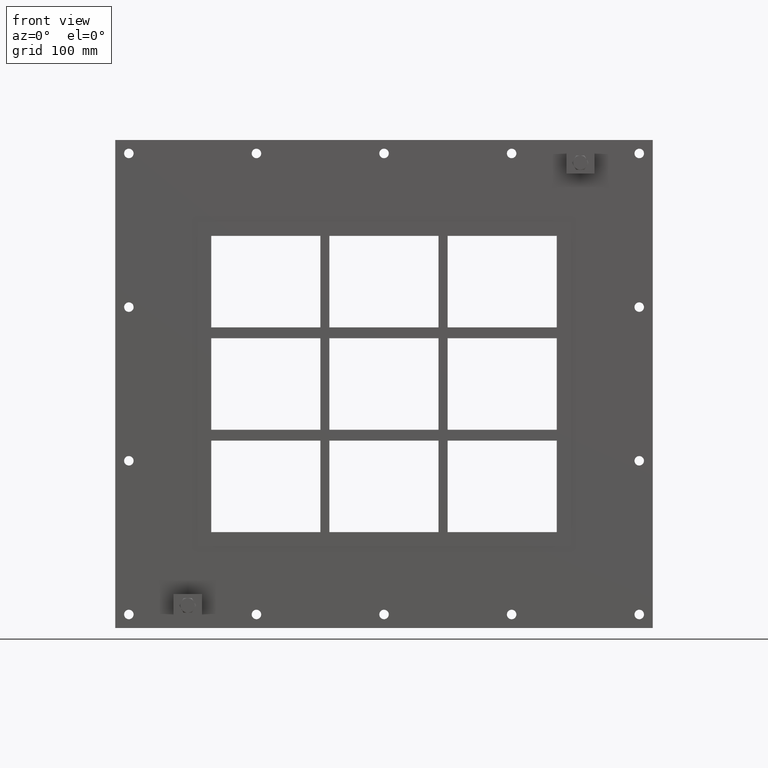
[diagram: clean part render]
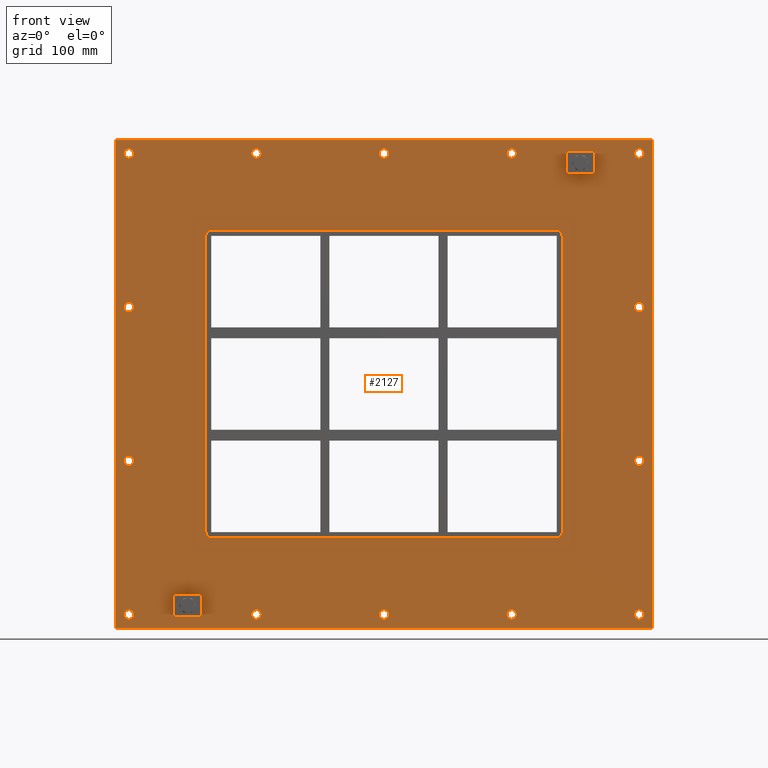
[diagram: same view with one face highlighted and labeled with its STEP entity id]
A machine part, front view. The second image highlights one B-rep face of the part: STEP entity #2127.
In plain terms, the highlighted planar face has unit normal (0, 1, 0).
Its self-contained STEP definition (entity closure, byte-faithful):
#84=CARTESIAN_POINT('',(-276.50000000000023,0.0,-254.49999999999994));
#85=VERTEX_POINT('',#84);
#86=CARTESIAN_POINT('',(-281.75000000000017,0.0,-254.49999999999994));
#87=DIRECTION('',(0.0,1.0,0.0));
#88=DIRECTION('',(1.0,0.0,0.0));
#89=AXIS2_PLACEMENT_3D('',#86,#87,#88);
#90=CIRCLE('',#89,5.25);
#91=EDGE_CURVE('',#85,#85,#90,.T.);
#112=CARTESIAN_POINT('',(287.09999999999985,0.0,-84.799999999999969));
#113=VERTEX_POINT('',#112);
#114=CARTESIAN_POINT('',(281.84999999999991,0.0,-84.799999999999969));
#115=DIRECTION('',(0.0,1.0,0.0));
#116=DIRECTION('',(1.0,0.0,0.0));
#117=AXIS2_PLACEMENT_3D('',#114,#115,#116);
#118=CIRCLE('',#117,5.25);
#119=EDGE_CURVE('',#113,#113,#118,.T.);
#140=CARTESIAN_POINT('',(-276.50000000000023,0.0,-84.799999999999969));
#141=VERTEX_POINT('',#140);
#142=CARTESIAN_POINT('',(-281.75000000000017,0.0,-84.799999999999969));
#143=DIRECTION('',(0.0,1.0,0.0));
#144=DIRECTION('',(1.0,0.0,0.0));
#145=AXIS2_PLACEMENT_3D('',#142,#143,#144);
#146=CIRCLE('',#145,5.25);
#147=EDGE_CURVE('',#141,#141,#146,.T.);
#168=CARTESIAN_POINT('',(287.09999999999985,0.0,84.90000000000002));
#169=VERTEX_POINT('',#168);
#170=CARTESIAN_POINT('',(281.84999999999991,0.0,84.90000000000002));
#171=DIRECTION('',(0.0,1.0,0.0));
#172=DIRECTION('',(1.0,0.0,0.0));
#173=AXIS2_PLACEMENT_3D('',#170,#171,#172);
#174=CIRCLE('',#173,5.25);
#175=EDGE_CURVE('',#169,#169,#174,.T.);
#196=CARTESIAN_POINT('',(-276.50000000000023,0.0,84.90000000000002));
#197=VERTEX_POINT('',#196);
#198=CARTESIAN_POINT('',(-281.75000000000017,0.0,84.90000000000002));
#199=DIRECTION('',(0.0,1.0,0.0));
#200=DIRECTION('',(1.0,0.0,0.0));
#201=AXIS2_PLACEMENT_3D('',#198,#199,#200);
#202=CIRCLE('',#201,5.25);
#203=EDGE_CURVE('',#197,#197,#202,.T.);
#224=CARTESIAN_POINT('',(-135.60000000000014,0.0,254.60000000000002));
#225=VERTEX_POINT('',#224);
#226=CARTESIAN_POINT('',(-140.85000000000014,0.0,254.60000000000002));
#227=DIRECTION('',(0.0,1.0,0.0));
#228=DIRECTION('',(1.0,0.0,0.0));
#229=AXIS2_PLACEMENT_3D('',#226,#227,#228);
#230=CIRCLE('',#229,5.25);
#231=EDGE_CURVE('',#225,#225,#230,.T.);
#252=CARTESIAN_POINT('',(-135.60000000000014,0.0,-254.49999999999994));
#253=VERTEX_POINT('',#252);
#254=CARTESIAN_POINT('',(-140.85000000000014,0.0,-254.49999999999994));
#255=DIRECTION('',(0.0,1.0,0.0));
#256=DIRECTION('',(1.0,0.0,0.0));
#257=AXIS2_PLACEMENT_3D('',#254,#255,#256);
#258=CIRCLE('',#257,5.25);
#259=EDGE_CURVE('',#253,#253,#258,.T.);
#280=CARTESIAN_POINT('',(5.299999999999834,0.0,254.60000000000002));
#281=VERTEX_POINT('',#280);
#282=CARTESIAN_POINT('',(0.049999999999848,0.0,254.60000000000002));
#283=DIRECTION('',(0.0,1.0,0.0));
#284=DIRECTION('',(1.0,0.0,0.0));
#285=AXIS2_PLACEMENT_3D('',#282,#283,#284);
#286=CIRCLE('',#285,5.25);
#287=EDGE_CURVE('',#281,#281,#286,.T.);
#308=CARTESIAN_POINT('',(5.299999999999834,0.0,-254.49999999999994));
#309=VERTEX_POINT('',#308);
#310=CARTESIAN_POINT('',(0.049999999999848,0.0,-254.49999999999994));
#311=DIRECTION('',(0.0,1.0,0.0));
#312=DIRECTION('',(1.0,0.0,0.0));
#313=AXIS2_PLACEMENT_3D('',#310,#311,#312);
#314=CIRCLE('',#313,5.25);
#315=EDGE_CURVE('',#309,#309,#314,.T.);
#336=CARTESIAN_POINT('',(146.19999999999985,0.0,254.60000000000002));
#337=VERTEX_POINT('',#336);
#338=CARTESIAN_POINT('',(140.94999999999987,0.0,254.60000000000002));
#339=DIRECTION('',(0.0,1.0,0.0));
#340=DIRECTION('',(1.0,0.0,0.0));
#341=AXIS2_PLACEMENT_3D('',#338,#339,#340);
#342=CIRCLE('',#341,5.25);
#343=EDGE_CURVE('',#337,#337,#342,.T.);
#364=CARTESIAN_POINT('',(146.19999999999985,0.0,-254.49999999999994));
#365=VERTEX_POINT('',#364);
#366=CARTESIAN_POINT('',(140.94999999999987,0.0,-254.49999999999994));
#367=DIRECTION('',(0.0,1.0,0.0));
#368=DIRECTION('',(1.0,0.0,0.0));
#369=AXIS2_PLACEMENT_3D('',#366,#367,#368);
#370=CIRCLE('',#369,5.25);
#371=EDGE_CURVE('',#365,#365,#370,.T.);
#392=CARTESIAN_POINT('',(287.09999999999985,0.0,-254.49999999999994));
#393=VERTEX_POINT('',#392);
#394=CARTESIAN_POINT('',(281.84999999999991,0.0,-254.49999999999994));
#395=DIRECTION('',(0.0,1.0,0.0));
#396=DIRECTION('',(1.0,0.0,0.0));
#397=AXIS2_PLACEMENT_3D('',#394,#395,#396);
#398=CIRCLE('',#397,5.25);
#399=EDGE_CURVE('',#393,#393,#398,.T.);
#420=CARTESIAN_POINT('',(-276.50000000000023,0.0,254.60000000000002));
#421=VERTEX_POINT('',#420);
#422=CARTESIAN_POINT('',(-281.75000000000017,0.0,254.60000000000002));
#423=DIRECTION('',(0.0,1.0,0.0));
#424=DIRECTION('',(1.0,0.0,0.0));
#425=AXIS2_PLACEMENT_3D('',#422,#423,#424);
#426=CIRCLE('',#425,5.25);
#427=EDGE_CURVE('',#421,#421,#426,.T.);
#448=CARTESIAN_POINT('',(287.09999999999985,0.0,254.60000000000002));
#449=VERTEX_POINT('',#448);
#450=CARTESIAN_POINT('',(281.84999999999991,0.0,254.60000000000002));
#451=DIRECTION('',(0.0,1.0,0.0));
#452=DIRECTION('',(1.0,0.0,0.0));
#453=AXIS2_PLACEMENT_3D('',#450,#451,#452);
#454=CIRCLE('',#453,5.25);
#455=EDGE_CURVE('',#449,#449,#454,.T.);
#1976=CARTESIAN_POINT('',(-1.505786E-014,0.0,0.0));
#1977=DIRECTION('',(0.0,1.0,0.0));
#1978=DIRECTION('',(0.0,0.0,1.0));
#1979=AXIS2_PLACEMENT_3D('',#1976,#1977,#1978);
#1980=PLANE('',#1979);
#1981=CARTESIAN_POINT('',(-296.75000000000006,0.0,269.49999999999994));
#1982=VERTEX_POINT('',#1981);
#1983=CARTESIAN_POINT('',(296.75000000000006,0.0,269.49999999999994));
#1984=VERTEX_POINT('',#1983);
#1985=CARTESIAN_POINT('',(-296.75000000000006,0.0,269.49999999999994));
#1986=DIRECTION('',(1.0,0.0,0.0));
#1987=VECTOR('',#1986,593.50000000000011);
#1988=LINE('',#1985,#1987);
#1989=EDGE_CURVE('',#1982,#1984,#1988,.T.);
#1990=ORIENTED_EDGE('',*,*,#1989,.F.);
#1991=CARTESIAN_POINT('',(-296.75000000000006,0.0,-269.49999999999994));
#1992=VERTEX_POINT('',#1991);
#1993=CARTESIAN_POINT('',(-296.75000000000006,0.0,-269.49999999999994));
#1994=DIRECTION('',(0.0,0.0,1.0));
#1995=VECTOR('',#1994,538.99999999999989);
#1996=LINE('',#1993,#1995);
#1997=EDGE_CURVE('',#1992,#1982,#1996,.T.);
#1998=ORIENTED_EDGE('',*,*,#1997,.F.);
#1999=CARTESIAN_POINT('',(296.75000000000006,0.0,-269.49999999999994));
#2000=VERTEX_POINT('',#1999);
#2001=CARTESIAN_POINT('',(296.75000000000006,0.0,-269.49999999999994));
#2002=DIRECTION('',(-1.0,0.0,0.0));
#2003=VECTOR('',#2002,593.50000000000011);
#2004=LINE('',#2001,#2003);
#2005=EDGE_CURVE('',#2000,#1992,#2004,.T.);
#2006=ORIENTED_EDGE('',*,*,#2005,.F.);
#2007=CARTESIAN_POINT('',(296.75000000000006,0.0,269.49999999999994));
#2008=DIRECTION('',(0.0,0.0,-1.0));
#2009=VECTOR('',#2008,538.99999999999989);
#2010=LINE('',#2007,#2009);
#2011=EDGE_CURVE('',#1984,#2000,#2010,.T.);
#2012=ORIENTED_EDGE('',*,*,#2011,.F.);
#2013=EDGE_LOOP('',(#1990,#1998,#2006,#2012));
#2014=FACE_OUTER_BOUND('',#2013,.T.);
#2015=ORIENTED_EDGE('',*,*,#91,.T.);
#2016=EDGE_LOOP('',(#2015));
#2017=FACE_BOUND('',#2016,.T.);
#2018=ORIENTED_EDGE('',*,*,#119,.T.);
#2019=EDGE_LOOP('',(#2018));
#2020=FACE_BOUND('',#2019,.T.);
#2021=ORIENTED_EDGE('',*,*,#147,.T.);
#2022=EDGE_LOOP('',(#2021));
#2023=FACE_BOUND('',#2022,.T.);
#2024=ORIENTED_EDGE('',*,*,#175,.T.);
#2025=EDGE_LOOP('',(#2024));
#2026=FACE_BOUND('',#2025,.T.);
#2027=ORIENTED_EDGE('',*,*,#203,.T.);
#2028=EDGE_LOOP('',(#2027));
#2029=FACE_BOUND('',#2028,.T.);
#2030=ORIENTED_EDGE('',*,*,#231,.T.);
#2031=EDGE_LOOP('',(#2030));
#2032=FACE_BOUND('',#2031,.T.);
#2033=ORIENTED_EDGE('',*,*,#259,.T.);
#2034=EDGE_LOOP('',(#2033));
#2035=FACE_BOUND('',#2034,.T.);
#2036=ORIENTED_EDGE('',*,*,#287,.T.);
#2037=EDGE_LOOP('',(#2036));
#2038=FACE_BOUND('',#2037,.T.);
#2039=ORIENTED_EDGE('',*,*,#315,.T.);
#2040=EDGE_LOOP('',(#2039));
#2041=FACE_BOUND('',#2040,.T.);
#2042=ORIENTED_EDGE('',*,*,#343,.T.);
#2043=EDGE_LOOP('',(#2042));
#2044=FACE_BOUND('',#2043,.T.);
#2045=ORIENTED_EDGE('',*,*,#371,.T.);
#2046=EDGE_LOOP('',(#2045));
#2047=FACE_BOUND('',#2046,.T.);
#2048=ORIENTED_EDGE('',*,*,#399,.T.);
#2049=EDGE_LOOP('',(#2048));
#2050=FACE_BOUND('',#2049,.T.);
#2051=ORIENTED_EDGE('',*,*,#427,.T.);
#2052=EDGE_LOOP('',(#2051));
#2053=FACE_BOUND('',#2052,.T.);
#2054=ORIENTED_EDGE('',*,*,#455,.T.);
#2055=EDGE_LOOP('',(#2054));
#2056=FACE_BOUND('',#2055,.T.);
#2057=CARTESIAN_POINT('',(-190.75000000000003,0.0,169.50000000000003));
#2058=VERTEX_POINT('',#2057);
#2059=CARTESIAN_POINT('',(-196.75000000000006,0.0,163.5));
#2060=VERTEX_POINT('',#2059);
#2061=CARTESIAN_POINT('',(-190.75000000000003,0.0,163.5));
#2062=DIRECTION('',(0.0,-1.0,0.0));
#2063=DIRECTION('',(-0.707106781186548,0.0,0.707106781186548));
#2064=AXIS2_PLACEMENT_3D('',#2061,#2062,#2063);
#2065=CIRCLE('',#2064,6.000000000000002);
#2066=EDGE_CURVE('',#2058,#2060,#2065,.T.);
#2067=ORIENTED_EDGE('',*,*,#2066,.F.);
#2068=CARTESIAN_POINT('',(190.75000000000003,0.0,169.50000000000003));
#2069=VERTEX_POINT('',#2068);
#2070=CARTESIAN_POINT('',(190.75000000000003,0.0,169.50000000000003));
#2071=DIRECTION('',(-1.0,0.0,0.0));
#2072=VECTOR('',#2071,381.50000000000006);
#2073=LINE('',#2070,#2072);
#2074=EDGE_CURVE('',#2069,#2058,#2073,.T.);
#2075=ORIENTED_EDGE('',*,*,#2074,.F.);
#2076=CARTESIAN_POINT('',(196.75000000000006,0.0,163.5));
#2077=VERTEX_POINT('',#2076);
#2078=CARTESIAN_POINT('',(190.75000000000003,0.0,163.5));
#2079=DIRECTION('',(0.0,-1.0,0.0));
#2080=DIRECTION('',(0.707106781186548,0.0,0.707106781186548));
#2081=AXIS2_PLACEMENT_3D('',#2078,#2079,#2080);
#2082=CIRCLE('',#2081,6.000000000000002);
#2083=EDGE_CURVE('',#2077,#2069,#2082,.T.);
#2084=ORIENTED_EDGE('',*,*,#2083,.F.);
#2085=CARTESIAN_POINT('',(196.75000000000006,0.0,-163.5));
#2086=VERTEX_POINT('',#2085);
#2087=CARTESIAN_POINT('',(196.75000000000006,0.0,-163.5));
#2088=DIRECTION('',(0.0,0.0,1.0));
#2089=VECTOR('',#2088,327.0);
#2090=LINE('',#2087,#2089);
#2091=EDGE_CURVE('',#2086,#2077,#2090,.T.);
#2092=ORIENTED_EDGE('',*,*,#2091,.F.);
#2093=CARTESIAN_POINT('',(190.75000000000003,0.0,-169.50000000000003));
#2094=VERTEX_POINT('',#2093);
#2095=CARTESIAN_POINT('',(190.75000000000003,0.0,-163.5));
#2096=DIRECTION('',(0.0,-1.0,0.0));
#2097=DIRECTION('',(0.707106781186548,0.0,-0.707106781186548));
#2098=AXIS2_PLACEMENT_3D('',#2095,#2096,#2097);
#2099=CIRCLE('',#2098,6.000000000000002);
#2100=EDGE_CURVE('',#2094,#2086,#2099,.T.);
#2101=ORIENTED_EDGE('',*,*,#2100,.F.);
#2102=CARTESIAN_POINT('',(-190.75000000000003,0.0,-169.50000000000003));
#2103=VERTEX_POINT('',#2102);
#2104=CARTESIAN_POINT('',(-190.75000000000003,0.0,-169.50000000000003));
#2105=DIRECTION('',(1.0,0.0,0.0));
#2106=VECTOR('',#2105,381.50000000000006);
#2107=LINE('',#2104,#2106);
#2108=EDGE_CURVE('',#2103,#2094,#2107,.T.);
#2109=ORIENTED_EDGE('',*,*,#2108,.F.);
#2110=CARTESIAN_POINT('',(-196.75000000000006,0.0,-163.5));
#2111=VERTEX_POINT('',#2110);
#2112=CARTESIAN_POINT('',(-190.75000000000003,0.0,-163.5));
#2113=DIRECTION('',(0.0,-1.0,0.0));
#2114=DIRECTION('',(-0.707106781186548,0.0,-0.707106781186548));
#2115=AXIS2_PLACEMENT_3D('',#2112,#2113,#2114);
#2116=CIRCLE('',#2115,6.000000000000002);
#2117=EDGE_CURVE('',#2111,#2103,#2116,.T.);
#2118=ORIENTED_EDGE('',*,*,#2117,.F.);
#2119=CARTESIAN_POINT('',(-196.75000000000006,0.0,163.5));
#2120=DIRECTION('',(0.0,0.0,-1.0));
#2121=VECTOR('',#2120,327.0);
#2122=LINE('',#2119,#2121);
#2123=EDGE_CURVE('',#2060,#2111,#2122,.T.);
#2124=ORIENTED_EDGE('',*,*,#2123,.F.);
#2125=EDGE_LOOP('',(#2067,#2075,#2084,#2092,#2101,#2109,#2118,#2124));
#2126=FACE_BOUND('',#2125,.T.);
#2127=ADVANCED_FACE('',(#2014,#2017,#2020,#2023,#2026,#2029,#2032,#2035,#2038,#2041,#2044,#2047,#2050,#2053,#2056,#2126),#1980,.F.);